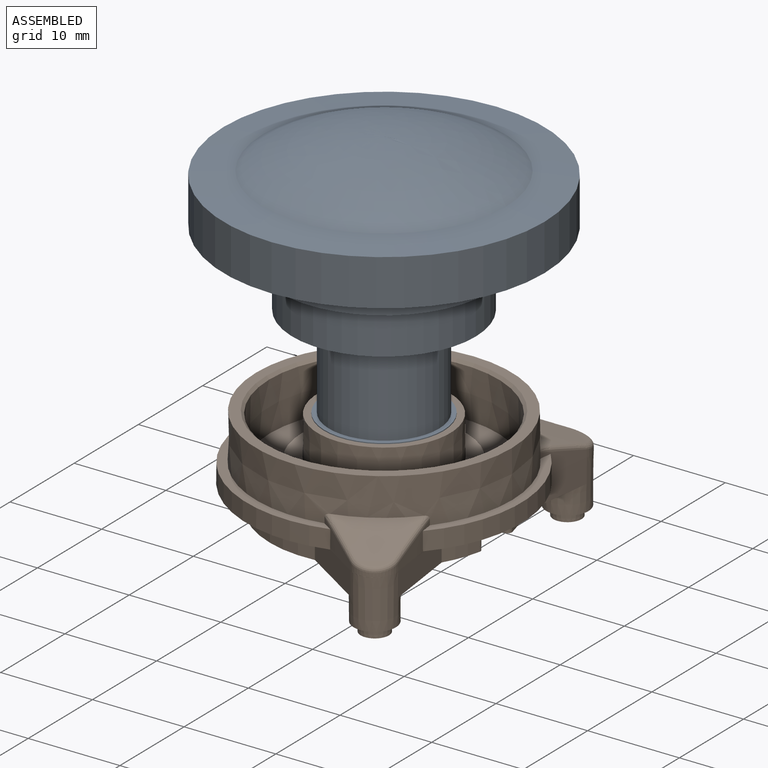
[diagram: assembled view]
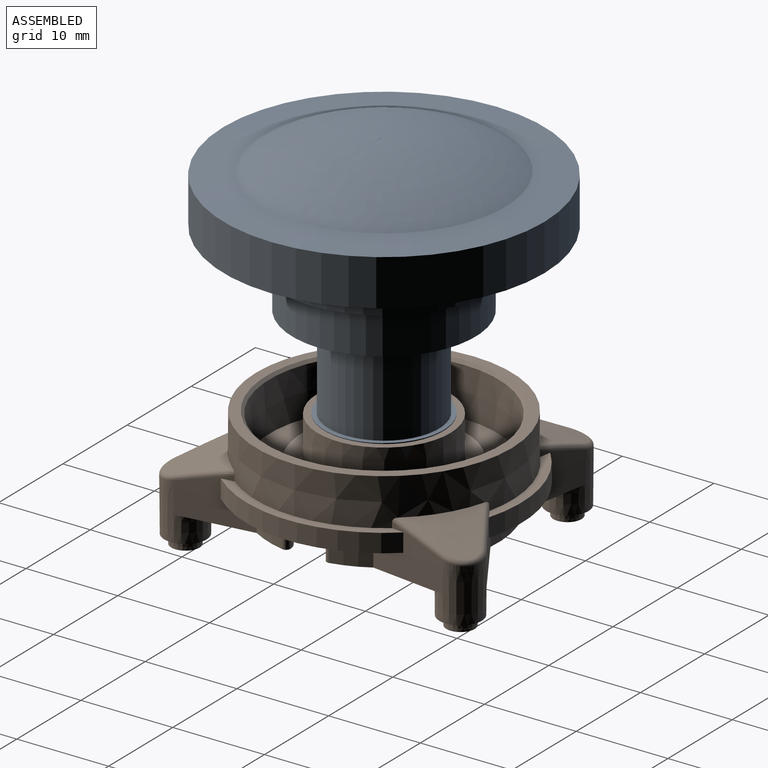
[diagram: assembled view, second angle]
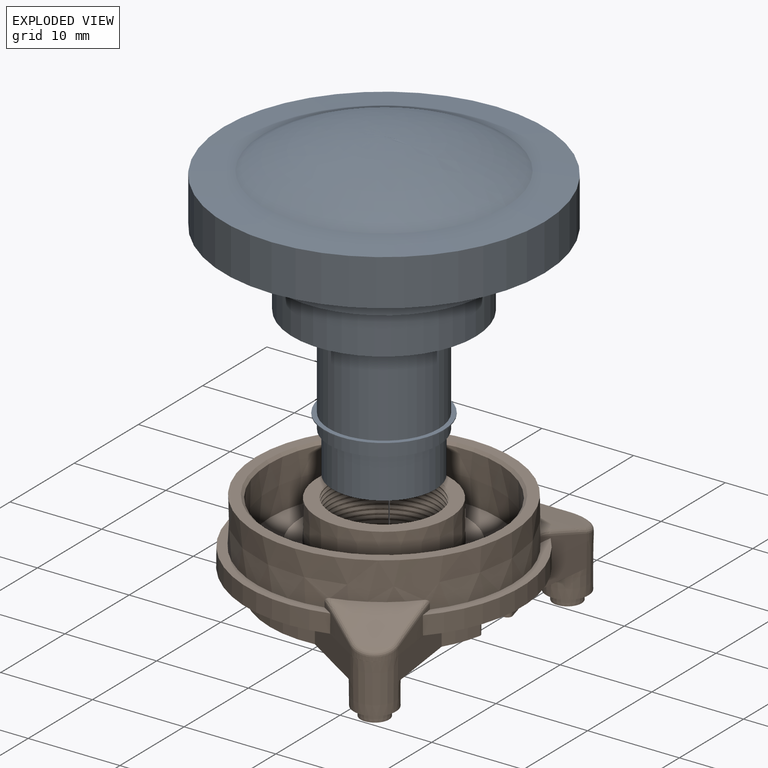
[diagram: exploded view]
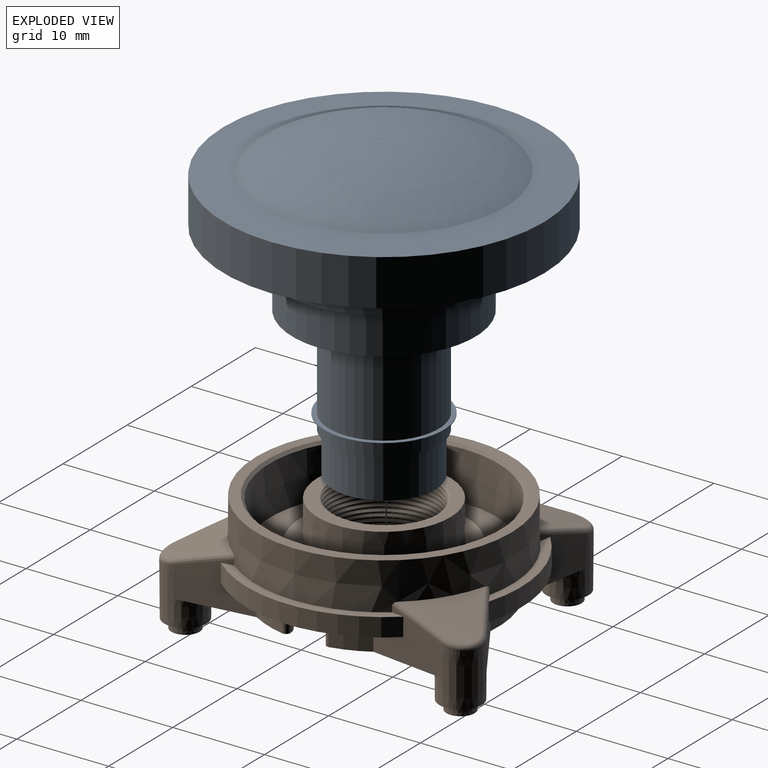
[diagram: exploded view, second angle]
ASSEMBLY  parts=2 mates=2
PART A: 18 faces, bbox 33.3x35x35 mm
  f0: cylinder r=11.5mm len=23mm, axis (-1,0,0), area 180.6mm2, adj f1,f17
  f1: plane 30x30mm, normal (1,0,0), area 291.4mm2, adj f0,f2
  f2: cylinder r=15mm len=30mm, axis (-1,0,0), area 94.2mm2, adj f1,f3
  f3: plane 35x35mm, normal (1,0,0), area 255.3mm2, adj f2,f4
  f4: cylinder r=17.5mm len=35mm, axis (-1,0,0), area 555.3mm2, adj f3,f5
  f5: cone r=17.5mm half-angle=85deg, axis (1,0,0), area 409.6mm2, adj f4,f6
  f6: revolved ~26.56x26.56mm, area 590mm2, adj f5
  f7: plane 11.2x11.2mm, normal (1,0,0), area 98.5mm2, adj f8
  f8: cylinder r=5.6mm len=11.2mm, axis (-1,0,0), area 158mm2, adj f7,f9
  f9: plane 12x12mm, normal (1,0,0), area 14.6mm2, adj f8,f10
  f10: cylinder r=6mm len=12mm, axis (-1,0,0), area 56.9mm2, adj f9,f11
  f11: plane 13x13mm, normal (1,0,0), area 19.6mm2, adj f10,f12
  f12: cylinder r=6.5mm len=13mm, axis (-1,0,0), area 4.1mm2, adj f11,f13
  f13: plane 13x13mm, normal (-1,0,0), area 19.6mm2, adj f12,f14
  f14: cylinder r=6mm len=12mm, axis (-1,0,0), area 382.3mm2, adj f13,f15
  f15: plane 20x20mm, normal (1,0,0), area 201.1mm2, adj f14,f16
  f16: cylinder r=10mm len=20mm, axis (-1,0,0), area 299.1mm2, adj f15,f17
  f17: plane 23x23mm, normal (1,0,0), area 101.3mm2, adj f0,f16
PART B: 126 faces, bbox 44.1x47.4x24.6 mm
  f0: bspline ~13.8x11.95mm, area 119.2mm2, adj f1,f123,f124,f125
  f1: plane 25.62x25.62mm, normal (0,0,1), area 61.4mm2, adj f0,f2,f4,f123,f125
  f2: bspline ~14.06x14.06mm, area -106.5mm2, adj f1,f3,f123,f125
  f3: cone r=5.73mm half-angle=45deg, axis (0,0,-1), area 1.3mm2, adj f2,f123,f124
  f4: cone r=7.23mm half-angle=0.5deg, axis (0,0,-1), area 200.9mm2, adj f1,f5
  f5: plane 18.03x18.03mm, normal (0,0,1), area 88.7mm2, adj f4,f6
  f6: cone r=9.45mm half-angle=30deg, axis (0,0,-1), area 60.6mm2, adj f5,f7
  f7: plane 24.91x24.91mm, normal (0,0,1), area 201.6mm2, adj f6,f8
  f8: cone r=12.5mm half-angle=0.5deg, axis (0,0,1), area 415.5mm2, adj f7,f9
  f9: cone r=12.5mm half-angle=45deg, axis (0,0,1), area 33.7mm2, adj f8,f10
  f10: plane 27.88x27.88mm, normal (0,0,1), area 95.6mm2, adj f9,f11
  f11: cone r=14mm half-angle=0.5deg, axis (0,0,-1), area 419.6mm2, adj f10,f12,f106,f107,f108,f109,f110,f111
  f12: plane 6.11x2.61mm, normal (0.99,0.13,0.01), area 7.9mm2, adj f11,f13,f103,f104,f106,f122
  f13: cone r=15mm half-angle=0.5deg, axis (0,0,-1), area 43.5mm2, adj f12,f14,f121,f122
  f14: plane 30x26mm, normal (0,0,-1), area 240.9mm2, adj f13,f15,f26,f28,f30,f70,f71,f72
  f15: cylinder r=2mm len=4mm, axis (0,0,1), area 3.8mm2, adj f14,f16
  f16: plane 4x4mm, normal (0,0,-1), area 10.1mm2, adj f15,f17,f19,f20,f21,f22,f23,f24
  f17: plane 1.07x0.3mm, normal (-1,0,0), area 0.3mm2, adj f16,f18,f19,f25
  f18: plane 2.5x2.38mm, normal (0,0,-1), area 2.4mm2, adj f17,f19,f20,f21,f22,f23,f24,f25
  f19: plane 0.77x0.3mm, normal (-0.35,-0.94,0), area 0.2mm2, adj f16,f17,f18,f20
  f20: plane 0.37x0.3mm, normal (-1,0,0), area 0.1mm2, adj f16,f18,f19,f21
  f21: plane 2.5x0.99mm, normal (0.37,0.93,0), area 0.8mm2, adj f16,f18,f20,f22
  f22: plane 0.4x0.3mm, normal (1,0,0), area 0.1mm2, adj f16,f18,f21,f23
  f23: plane 2.5x0.99mm, normal (0.37,-0.93,0), area 0.8mm2, adj f16,f18,f22,f24
  f24: plane 0.37x0.3mm, normal (-1,0,0), area 0.1mm2, adj f16,f18,f23,f25
  f25: plane 0.77x0.3mm, normal (-0.35,0.94,0), area 0.2mm2, adj f16,f17,f18,f24
  f26: cone r=8.15mm half-angle=30deg, axis (0,0,-1), area 54.9mm2, adj f14,f27
  f27: plane 16.3x16.3mm, normal (0,0,-1), area 94.4mm2, adj f26,f124
  f28: cylinder r=2mm len=4mm, axis (0,0,1), area 3.8mm2, adj f14,f29
  f29: plane 4x4mm, normal (0,0,-1), area 12.6mm2, adj f28
  f30: cone r=0.5mm half-angle=0.5deg, axis (0,0,1), area 2.4mm2, adj f14,f31,f70,f102
  f31: plane 29.13x14.98mm, normal (0,0,-1), area 83.5mm2, adj f30,f32,f36,f37,f38,f48,f51,f52
  f32: plane 4.78x4.23mm, normal (-0.99,0.13,-0.01), area 15mm2, adj f31,f33,f34,f35,f36,f38
  f33: cone r=14mm half-angle=0.5deg, axis (0,0,1), area 8.5mm2, adj f32,f34,f35,f37
  f34: plane 6.4x4.94mm, normal (0,0,-1), area 9.8mm2, adj f32,f33,f36,f37
  f35: cone r=31.74mm half-angle=70deg, axis (0,0,-1), area 10.7mm2, adj f32,f33,f37,f38
  f36: cone r=12.5mm half-angle=0.5deg, axis (0,0,1), area 19.3mm2, adj f31,f32,f34,f37
  f37: plane 4.23x4.08mm, normal (0.54,-0.84,-0.01), area 15mm2, adj f31,f33,f34,f35,f36,f38
  f38: cone r=2.35mm half-angle=0.5deg, axis (0,0,1), area 67.8mm2, adj f31,f32,f35,f37,f39,f41,f48,f101
  f39: cone r=2.35mm half-angle=0.5deg, axis (0,0,-1), area 3mm2, adj f38,f40,f117,f121
  f40: bspline ~3.62x2.65mm, area 3.1mm2, adj f39,f118,f119,f120
  f41: plane 4.61x4.61mm, normal (0,0,-1), area 9.1mm2, adj f38,f42
  f42: cone r=1.55mm half-angle=0.5deg, axis (0,0,1), area 9.7mm2, adj f41,f43
  f43: plane 3.08x3.08mm, normal (0,0,-1), area 3.9mm2, adj f42,f44
  f44: cone r=1.05mm half-angle=0.5deg, axis (0,0,-1), area 6.6mm2, adj f43,f45
  f45: plane 2.1x2.1mm, normal (0,0,-1), area 1.5mm2, adj f44,f46
  f46: cylinder r=0.8mm len=5.6mm, axis (0,0,1), area 28.1mm2, adj f45,f47
  f47: plane 1.6x1.6mm, normal (0,0,-1), area 2mm2, adj f46
  f48: plane 7.09x4.56mm, normal (-0.54,0.84,-0.01), area 21.9mm2, adj f31,f38,f49,f51,f117
  f49: plane 14.36x4.53mm, normal (0,0,-1), area 29.9mm2, adj f48,f50,f51,f52
  f50: cone r=15mm half-angle=0.5deg, axis (0,0,-1), area 30.8mm2, adj f49,f115,f116,f117
  f51: cone r=12.5mm half-angle=0.5deg, axis (0,0,1), area 21.8mm2, adj f31,f48,f49,f52
  f52: plane 7.77x2.6mm, normal (0.17,0.99,-0.01), area 20.5mm2, adj f31,f49,f51,f60,f115
  f53: plane 4.4x4.22mm, normal (-0.17,-0.99,0), area 14mm2, adj f31,f54,f55,f56,f57,f58,f60
  f54: cylinder r=14mm len=4.35mm, axis (0,0,-1), area 7.8mm2, adj f53,f55,f57,f59
  f55: plane 5.85x4.57mm, normal (0,0,-1), area 8.8mm2, adj f53,f54,f58,f59
  f56: cylinder r=2.35mm len=2.74mm, axis (0,0,1), area 2.6mm2, adj f53,f57,f59,f60
  f57: cone r=31.74mm half-angle=70deg, axis (0,0,-1), area 9.7mm2, adj f53,f54,f56,f59
  f58: cylinder r=12.5mm len=5.54mm, axis (0,0,-1), area 17.2mm2, adj f31,f53,f55,f59
  f59: plane 4.22x3.67mm, normal (0.82,0.58,0), area 14mm2, adj f31,f54,f55,f56,f57,f58,f60
  f60: cone r=2.35mm half-angle=0.5deg, axis (0,0,1), area 64.4mm2, adj f31,f52,f53,f56,f59,f61,f68,f76
  f61: plane 4.61x4.61mm, normal (0,0,-1), area 9.1mm2, adj f60,f62
  f62: cone r=1.55mm half-angle=0.5deg, axis (0,0,1), area 9.7mm2, adj f61,f63
  f63: plane 3.08x3.08mm, normal (0,0,-1), area 3.9mm2, adj f62,f64
  f64: cone r=1.05mm half-angle=0.5deg, axis (0,0,-1), area 6.6mm2, adj f63,f65
  f65: plane 2.1x2.1mm, normal (0,0,-1), area 1.5mm2, adj f64,f66
  f66: cylinder r=0.8mm len=5.6mm, axis (0,0,1), area 28.1mm2, adj f65,f67
  f67: plane 1.6x1.6mm, normal (0,0,-1), area 2mm2, adj f66
  f68: cone r=2.35mm half-angle=0.5deg, axis (0,0,-1), area 4.5mm2, adj f60,f69,f111,f115
  f69: bspline ~3.7x2.75mm, area 3.3mm2, adj f68,f112,f113,f114
  f70: cone r=2mm half-angle=0.5deg, axis (0,0,1), area 9.5mm2, adj f14,f30,f31,f71
  f71: cone r=11mm half-angle=0.5deg, axis (0,0,-1), area 65.1mm2, adj f14,f31,f70,f72
  f72: cone r=2mm half-angle=0.5deg, axis (0,0,1), area 9.5mm2, adj f14,f31,f71,f73
  f73: cone r=0.5mm half-angle=0.5deg, axis (0,0,1), area 0.1mm2, adj f14,f31,f72,f74
  f74: plane 2.6x0.56mm, normal (0,-1,-0.01), area 1.5mm2, adj f14,f31,f73,f75
  f75: cone r=0.5mm half-angle=0.5deg, axis (0,0,1), area 1.2mm2, adj f14,f31,f74,f76
  f76: plane 5.99x4.23mm, normal (-0.82,-0.58,-0.01), area 19mm2, adj f14,f31,f60,f75,f111
  f77: cone r=15mm half-angle=0.5deg, axis (0,0,-1), area 64.7mm2, adj f14,f109,f110,f111
  f78: plane 7.09x4.56mm, normal (-0.54,-0.84,-0.01), area 21.9mm2, adj f14,f79,f86,f94,f109
  f79: plane 24.45x14.98mm, normal (0,0,-1), area 66.8mm2, adj f78,f80,f84,f85,f86,f94,f95,f96
  f80: plane 4.23x4.08mm, normal (0.54,0.84,-0.01), area 15mm2, adj f79,f81,f82,f83,f84,f86
  f81: cone r=14mm half-angle=0.5deg, axis (0,0,1), area 8.5mm2, adj f80,f82,f83,f85
  f82: plane 6.4x4.94mm, normal (0,0,-1), area 9.8mm2, adj f80,f81,f84,f85
  f83: cone r=31.74mm half-angle=70deg, axis (0,0,-1), area 10.7mm2, adj f80,f81,f85,f86
  f84: cone r=12.5mm half-angle=0.5deg, axis (0,0,1), area 19.3mm2, adj f79,f80,f82,f85
  f85: plane 4.78x4.23mm, normal (-0.99,-0.13,-0.01), area 15mm2, adj f79,f81,f82,f83,f84,f86
  f86: cone r=2.35mm half-angle=0.5deg, axis (0,0,1), area 67.8mm2, adj f78,f79,f80,f83,f85,f87,f103,f104
  f87: plane 4.61x4.61mm, normal (0,0,-1), area 9.1mm2, adj f86,f88
  f88: cone r=1.55mm half-angle=0.5deg, axis (0,0,1), area 9.7mm2, adj f87,f89
  f89: plane 3.08x3.08mm, normal (0,0,-1), area 3.9mm2, adj f88,f90
  f90: cone r=1.05mm half-angle=0.5deg, axis (0,0,-1), area 6.6mm2, adj f89,f91
  f91: plane 2.1x2.1mm, normal (0,0,-1), area 1.5mm2, adj f90,f92
  f92: cylinder r=0.8mm len=5.6mm, axis (0,0,1), area 28.1mm2, adj f91,f93
  f93: plane 1.6x1.6mm, normal (0,0,-1), area 2mm2, adj f92
  f94: cone r=12.5mm half-angle=0.5deg, axis (0,0,1), area 47.3mm2, adj f14,f78,f79,f95
  f95: cone r=0.5mm half-angle=0.5deg, axis (0,0,1), area 2.4mm2, adj f14,f79,f94,f96
  f96: cone r=2mm half-angle=0.5deg, axis (0,0,1), area 9.5mm2, adj f14,f79,f95,f97
  f97: cone r=11mm half-angle=0.5deg, axis (0,0,-1), area 65.1mm2, adj f14,f79,f96,f98
  f98: cone r=2mm half-angle=0.5deg, axis (0,0,1), area 9.5mm2, adj f14,f79,f97,f99
  f99: cone r=0.5mm half-angle=0.5deg, axis (0,0,1), area 2.4mm2, adj f14,f79,f98,f100
  f100: cone r=12.5mm half-angle=0.5deg, axis (0,0,1), area 10.7mm2, adj f14,f79,f99,f103
  f101: plane 8.34x2.6mm, normal (0.99,-0.13,-0.01), area 21.9mm2, adj f14,f31,f38,f102,f121
  f102: cone r=12.5mm half-angle=0.5deg, axis (0,0,1), area 10.7mm2, adj f14,f30,f31,f101
  f103: plane 8.34x2.6mm, normal (0.99,0.13,-0.01), area 21.9mm2, adj f12,f14,f79,f86,f100
  f104: cone r=2.35mm half-angle=0.5deg, axis (0,0,-1), area 3mm2, adj f12,f86,f105,f109
  f105: bspline ~3.62x2.65mm, area 3.1mm2, adj f104,f106,f107,f108
  f106: bspline ~6.36x2.29mm, area 4.3mm2, adj f11,f12,f105,f107
  f107: cone r=31.74mm half-angle=70deg, axis (0,0,-1), area 32.3mm2, adj f11,f105,f106,f108
  f108: bspline ~5.52x3.6mm, area 4.3mm2, adj f11,f105,f107,f109
  f109: plane 5.18x3.35mm, normal (-0.54,-0.84,0.01), area 7.9mm2, adj f11,f77,f78,f104,f108,f110
  f110: plane 19.44x19.19mm, normal (0,0,1), area 30.4mm2, adj f11,f77,f109,f111
  f111: plane 4.75x3.37mm, normal (-0.82,-0.58,0.01), area 7.5mm2, adj f11,f68,f76,f77,f110,f112
  f112: bspline ~5.16x3.71mm, area 4.1mm2, adj f11,f69,f111,f113
  f113: cone r=31.74mm half-angle=70deg, axis (0,0,-1), area 30mm2, adj f11,f69,f112,f114
  f114: bspline ~6x2.26mm, area 4.1mm2, adj f11,f69,f113,f115
  f115: plane 5.73x2.6mm, normal (0.17,0.99,0.01), area 7.5mm2, adj f11,f50,f52,f68,f114,f116
  f116: plane 14.35x4.18mm, normal (0,0,1), area 14.1mm2, adj f11,f50,f115,f117
  f117: plane 5.18x3.35mm, normal (-0.54,0.84,0.01), area 7.9mm2, adj f11,f39,f48,f50,f116,f118
  f118: bspline ~5.52x3.6mm, area 4.3mm2, adj f11,f40,f117,f119
  f119: cone r=31.74mm half-angle=70deg, axis (0,0,-1), area 32.3mm2, adj f11,f40,f118,f120
  f120: bspline ~6.3x2.28mm, area 4.3mm2, adj f11,f40,f119,f121
  f121: plane 6.11x2.61mm, normal (0.99,-0.13,0.01), area 7.9mm2, adj f11,f13,f39,f101,f120,f122
  f122: plane 19.9x3.96mm, normal (0,0,1), area 20.2mm2, adj f11,f12,f13,f121
  f123: cylinder r=5.73mm len=11.46mm, axis (0,0,-1), area 59.1mm2, adj f0,f1,f2,f3,f124
  f124: cone r=5.73mm half-angle=45deg, axis (0,0,-1), area 8.4mm2, adj f0,f3,f27,f123,f125
  f125: bspline ~13.89x12.03mm, area 45.6mm2, adj f0,f1,f2,f124
PLACE A rot(axis=(0,1,0),90deg) t=(-25.73,5.03,17.74)mm
PLACE B t=(-43.73,-12.97,11.54)mm
MATE cylindrical A.f0 <-> B.f4  axis (0,0,-1) through (-25.73,5.03,17.74)mm
MATE planar A.f0 <-> B.f1  axis (0,0,-1) through (-25.73,5.03,23.74)mm
